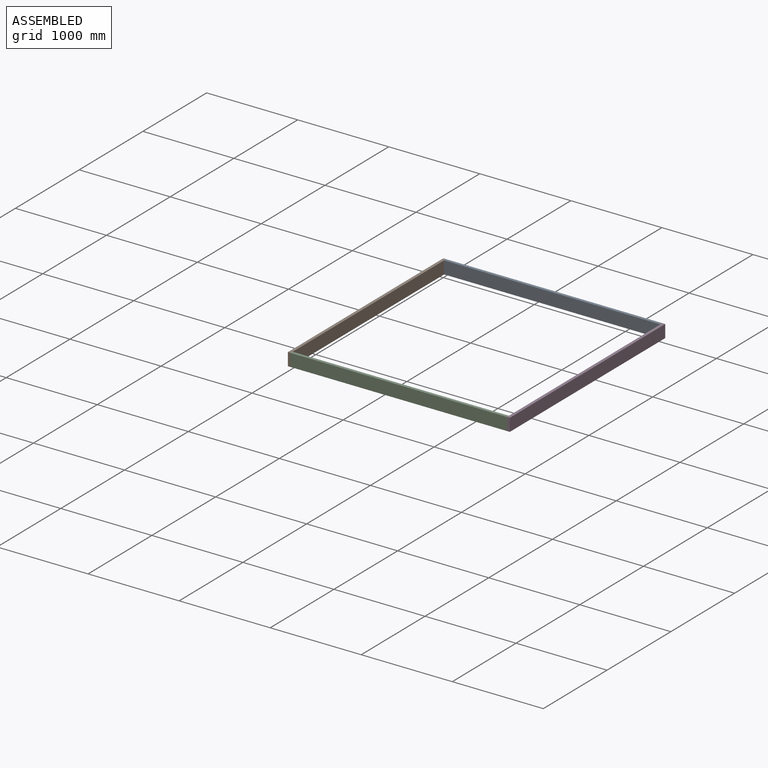
[diagram: assembled view]
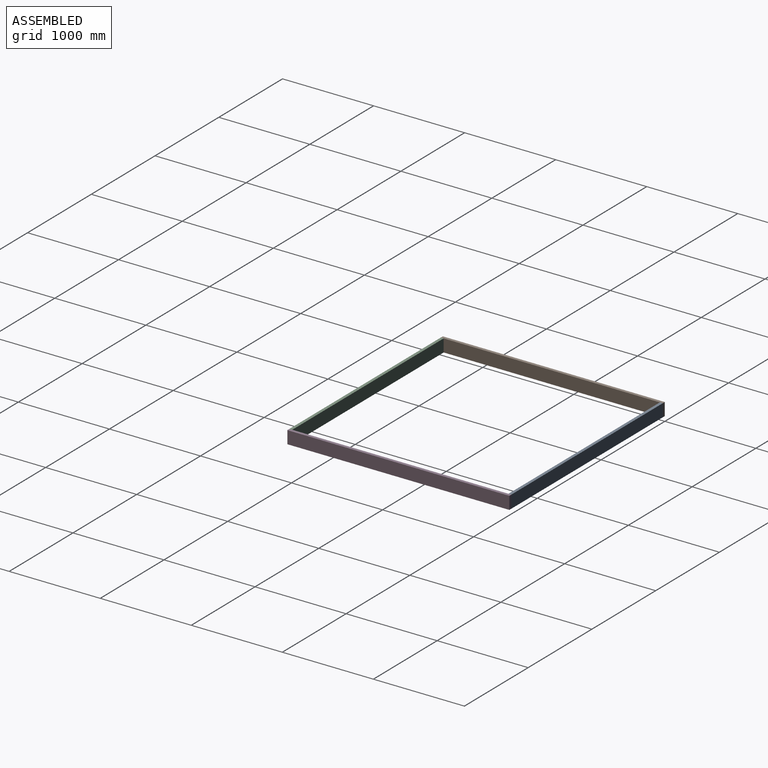
[diagram: assembled view, second angle]
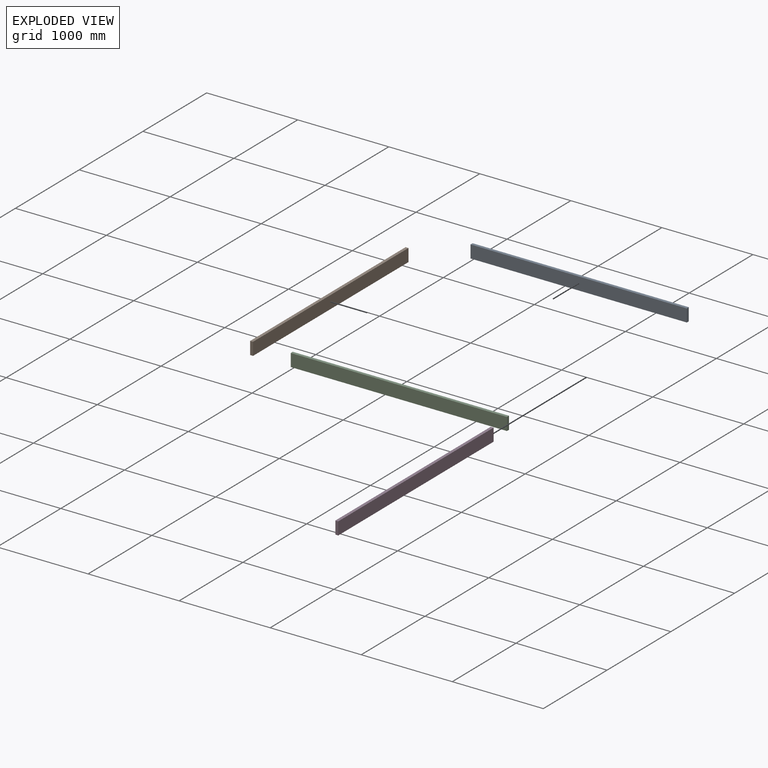
[diagram: exploded view]
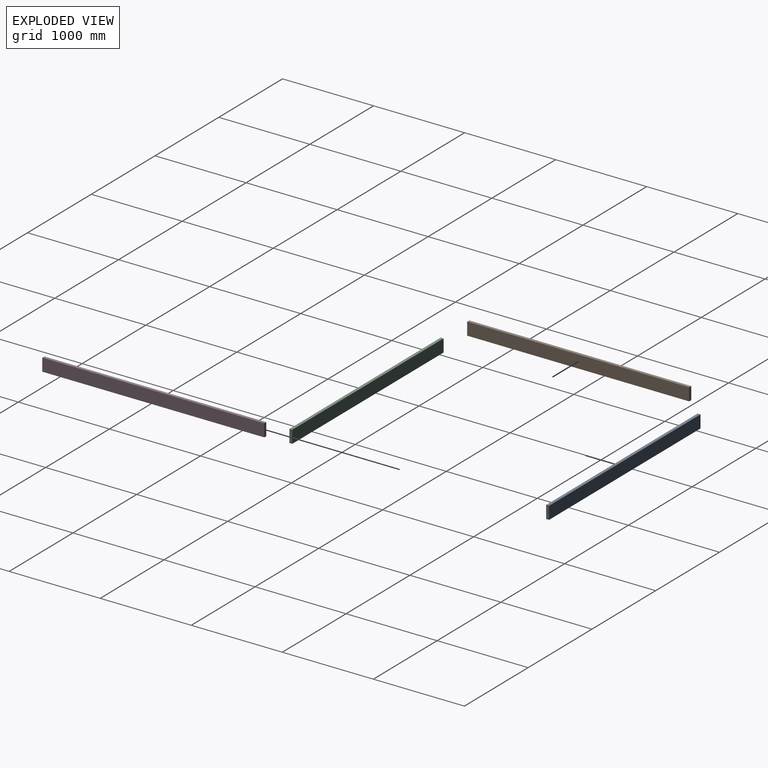
[diagram: exploded view, second angle]
ASSEMBLY  parts=4 mates=3
PART A: 6 faces, bbox 2374.9x31.8x139.7 mm
  f0: plane 2374.9x31.75mm, normal (0,0,1), area 75403.1mm2, adj f1,f3,f4,f5
  f1: plane 2374.9x139.7mm, normal (0,-1,0), area 331773.5mm2, adj f0,f2,f4,f5
  f2: plane 2374.9x31.75mm, normal (0,0,-1), area 75403.1mm2, adj f1,f3,f4,f5
  f3: plane 2374.9x139.7mm, normal (0,1,0), area 331773.5mm2, adj f0,f2,f4,f5
  f4: plane 139.7x31.75mm, normal (1,0,0), area 4435.5mm2, adj f0,f1,f2,f3
  f5: plane 139.7x31.75mm, normal (-1,0,0), area 4435.5mm2, adj f0,f1,f2,f3
PART B: 6 faces, bbox 31.8x2438.4x139.7 mm
  f0: plane 2438.4x31.75mm, normal (0,0,1), area 77419.2mm2, adj f1,f3,f4,f5
  f1: plane 2438.4x139.7mm, normal (-1,0,0), area 340644.5mm2, adj f0,f2,f4,f5
  f2: plane 2438.4x31.75mm, normal (0,0,-1), area 77419.2mm2, adj f1,f3,f4,f5
  f3: plane 2438.4x139.7mm, normal (1,0,0), area 340644.5mm2, adj f0,f2,f4,f5
  f4: plane 139.7x31.75mm, normal (0,-1,0), area 4435.5mm2, adj f0,f1,f2,f3
  f5: plane 139.7x31.75mm, normal (0,1,0), area 4435.5mm2, adj f0,f1,f2,f3
PART C: same geometry as A
PART D: same geometry as B
PLACE A at identity
PLACE B at identity
PLACE C t=(0,-2406.65,0)mm
PLACE D t=(2406.65,0,0)mm
MATE fastened D.f4 <-> C.f1  axis (0,-1,0) through (2406.65,-2438.4,69.85)mm
MATE fastened B.f5 <-> A.f3  axis (0,1,0) through (31.75,0,69.85)mm
MATE fastened B.f4 <-> C.f1  axis (0,-1,0) through (31.75,-2438.4,69.85)mm
